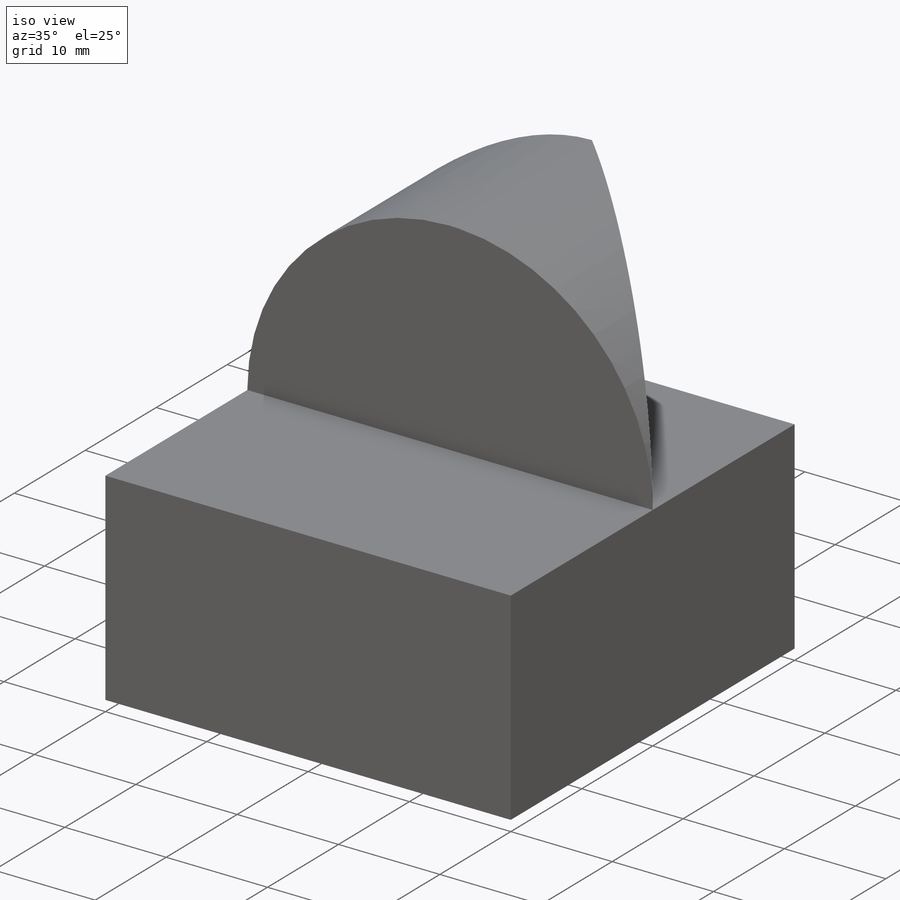
[diagram: iso view]
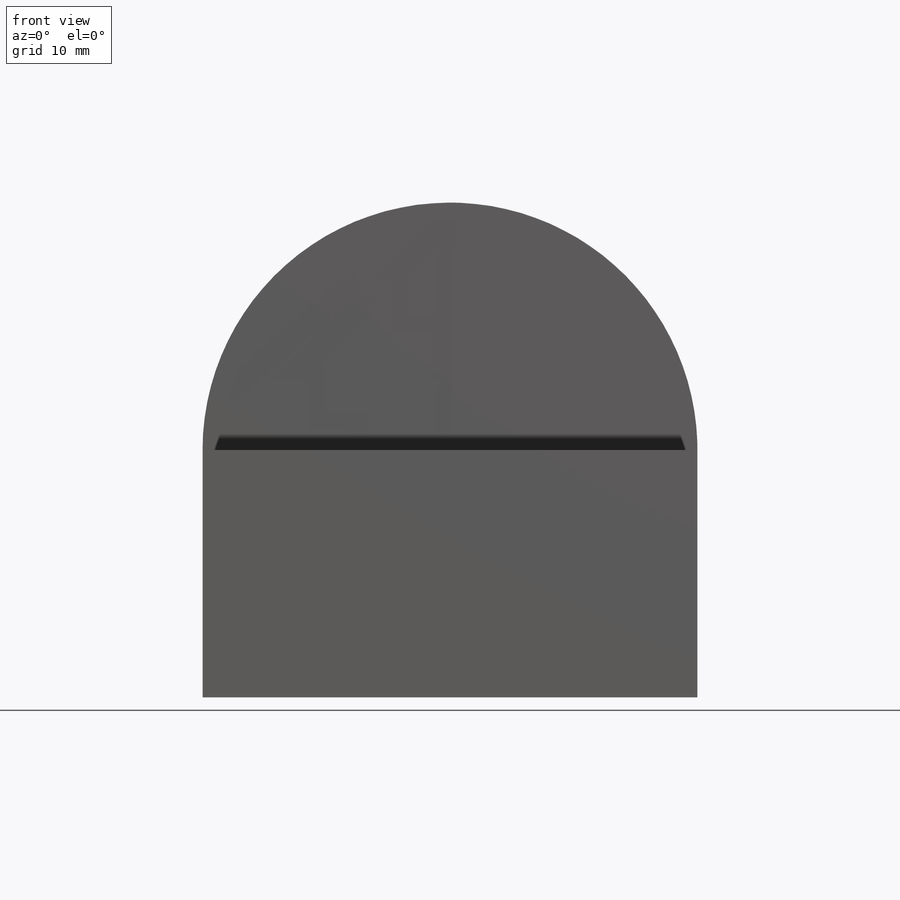
[diagram: front view]
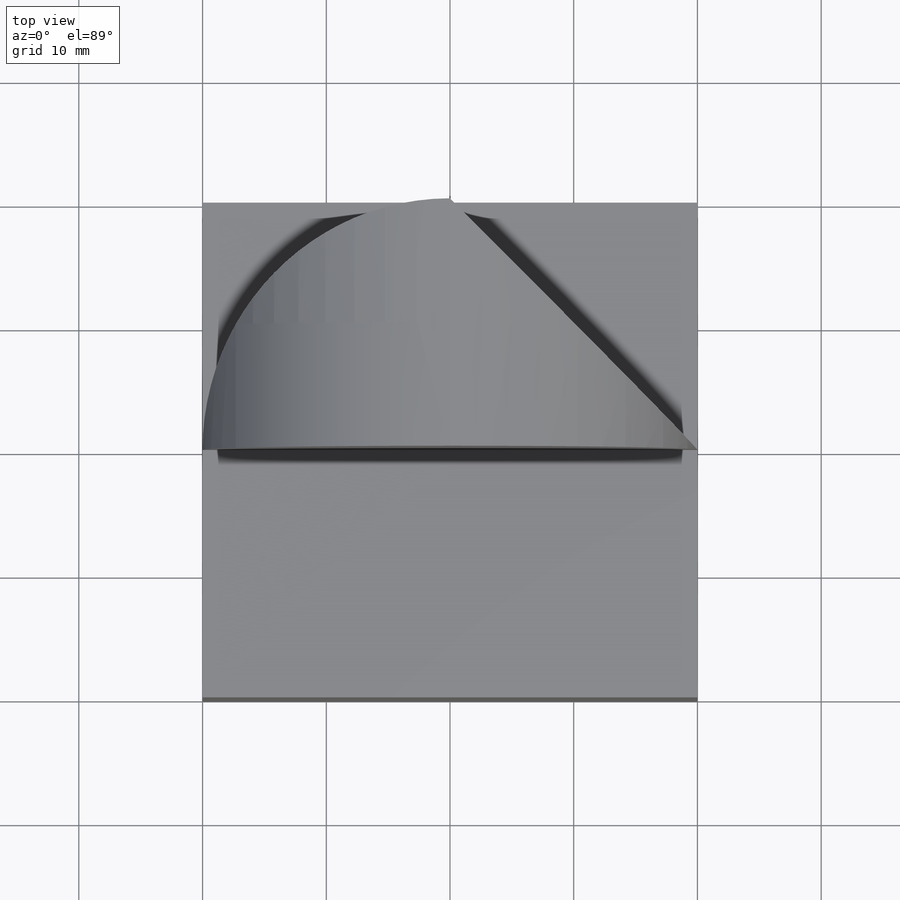
[diagram: top view]
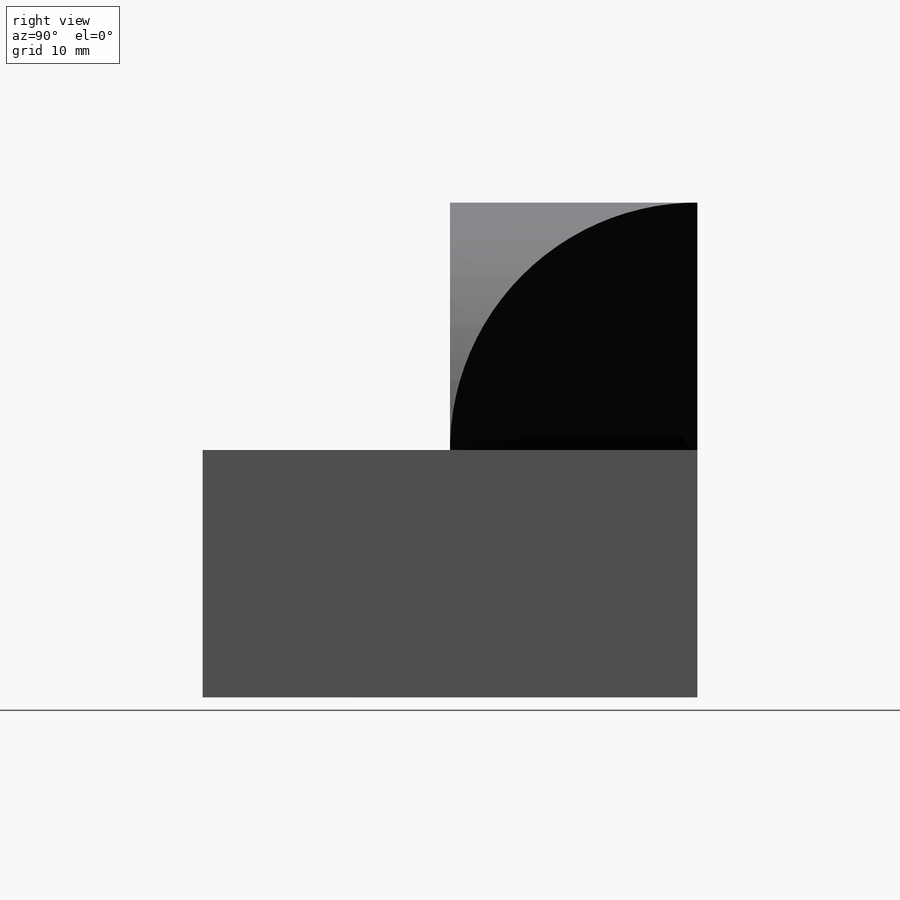
[diagram: right view]
SOLIDWORKS PART (.sldprt)
format: sldprt  version: not decoded by parser v0  size: 739,840 bytes
history: native  units: mm
features: sketch x42, cut_extrude x24, extrude x18, plane x9, material x1 (+13 scaffold rows collapsed)
feature tree (107):
  scaffold x13  (default folders/planes/origin — collapsed)
  material  "Material <not specified>"
  sketch  "Sketch1"  dims[c1.D1=~38.921099mm c1.D2=~68.968995mm c2.D1=40.0mm c2.D2=20.0mm]
  extrude  "Boss-Extrude1"  Depth=40mm
  sketch  "Sketch2"  dims[D1=20.0mm]
  extrude  "Boss-Extrude2"  Depth=10mm
  sketch  "Sketch3"  dims[D1=20.0mm]
  extrude  "Boss-Extrude3"  Depth=20mm
  plane  "Plane1"  Offset=20mm
  sketch  "Sketch4"  dims[D1=20.0mm]
  cut_extrude  "Cut-Extrude2"  Depth=20mm
  sketch  "Sketch5"  dims[D1=10.0mm]
  extrude  "Boss-Extrude4"  Depth=20mm
  plane  "Plane2"  Offset=10mm
  sketch  "Sketch7"  dims[D1=10.0mm]
  cut_extrude  "Cut-Extrude3"  Depth=20mm
  sketch  "Sketch8"  dims[D1=20.0mm D2=20.0mm D3=20.0mm]
  cut_extrude  "Cut-Extrude4"  Depth=1mm
  sketch  "Sketch13"  dims[D1=~28.284271mm]
  cut_extrude  "Cut-Extrude12"  Depth=63mm
  sketch  "Sketch17"  dims[D1=~28.284271mm]
  extrude  "Boss-Extrude11"  Depth=40mm
  sketch  "Sketch19"  dims[D1=~28.284271mm]
  extrude  "Boss-Extrude12"  Depth=1mm
  plane  "Plane3"  Offset=20mm
  sketch  "Sketch25"  dims[c1.D1=20.0mm c1.D2=~8.063542mm c2.D1=10.0mm]
  cut_extrude  "Cut-Extrude27"  Depth=42mm
  sketch  "Sketch28"  dims[c1.D1=~8.584748mm c1.D2=~9.219649mm c2.D1=9.99mm c2.D2=9.99mm]
  extrude  "Boss-Extrude20"  Depth=20mm
  sketch  "Sketch33"  dims[D1=~28.284271mm]
  extrude  "Boss-Extrude32"  Depth=20mm
  sketch  "Sketch34"  dims[D1=20.0mm D2=40.0mm]
  extrude  "Boss-Extrude33"  Depth=10mm
  sketch  "Sketch35"  dims[D1=20.01mm]
  extrude  "Boss-Extrude34"  Depth=10mm
  sketch  "Sketch36"  dims[D1=20.0mm D2=40.0mm]
  cut_extrude  "Cut-Extrude29"  Depth=9.999mm
  sketch  "Sketch37"  dims[D1=~28.284271mm]
  cut_extrude  "Cut-Extrude30"  Depth=9.999mm
  sketch  "Sketch38"  dims[D1=20.0mm]
  cut_extrude  "Cut-Extrude31"  [1 undecoded]
  plane  "Plane4"
  sketch  "Sketch40"  dims[D1=20.0mm]
  cut_extrude  "Cut-Extrude32"  Depth=9.999mm
  sketch  "Sketch46"  dims[D1=20.0mm]
  cut_extrude  "Cut-Extrude39"  Depth=20mm
  sketch  "Sketch47"  dims[D1=20.0mm]
  extrude  "Boss-Extrude35"  Depth=10mm
  sketch  "Sketch48"  dims[D1=10.0mm D2=20.0mm]
  extrude  "Boss-Extrude37"  Depth=0.001mm
  sketch  "Sketch49"  dims[D1=19.999mm]
  cut_extrude  "Cut-Extrude40"  Depth=20mm
  sketch  "Sketch51"  dims[D1=10.0mm]
  extrude  "Boss-Extrude38"  Depth=20mm
  sketch  "Sketch52"  dims[D1=20.0mm]
  cut_extrude  "Cut-Extrude41"  [1 undecoded]
  sketch  "Sketch53"  dims[D1=20.0mm]
  cut_extrude  "Cut-Extrude43"  Depth=10mm
  sketch  "Sketch54"  dims[c1.D1=~20.000427mm c1.D2=~28.367971mm c2.D1=~20.000427mm c2.D2=~20.000427mm c2.D3=~28.280676mm]
  cut_extrude  "Cut-Extrude46"  Depth=20mm
  sketch  "Sketch55"  dims[D1=10.0mm D2=10.0mm]
  extrude  "Boss-Extrude40"  Depth=20mm
  sketch  "Sketch56"  dims[D1=40.0mm D2=20.0mm]
  extrude  "Boss-Extrude41"  Depth=20mm
  plane  "Plane5"  Offset=20mm
  sketch  "Sketch57"  dims[D1=10.0mm D2=20.0mm]
  cut_extrude  "Cut-Extrude48"  Depth=20mm
  plane  "Plane6"  Offset=10mm
  sketch  "Sketch58"  dims[D1=~20.000018mm]
  extrude  "Boss-Extrude44"  Depth=9.999mm
  sketch  "Sketch59"  dims[D1=10.0mm]
  cut_extrude  "Cut-Extrude51"  Depth=47.999mm
  sketch  "Sketch60"  dims[D1=0.0mm]
  extrude  "Boss-Extrude45"  Depth=30mm
  sketch  "Sketch61"  dims[D1=~20.000018mm]
  cut_extrude  "Cut-Extrude52"  [1 undecoded]
  sketch  "Sketch63"  dims[D1=~20.000004mm]
  cut_extrude  "Cut-Extrude53"  Depth=0.0001mm
  sketch  "Sketch64"  dims[D1=~20.000018mm]
  cut_extrude  "Cut-Extrude54"  Depth=20mm
  sketch  "Sketch65"  dims[D1=19.999mm]
  cut_extrude  "Cut-Extrude59"  Depth=3000mm
  sketch  "Sketch66"  dims[D1=~9.999652mm]
  extrude  "Boss-Extrude52"  Depth=20mm
  sketch  "Sketch72"  dims[D1=20.0mm]
  cut_extrude  "Cut-Extrude64"  [1 undecoded]
  plane  "Plane7"  Offset=40mm
  sketch  "Sketch73"  dims[c1.D1=~8.658083mm c1.D2=~12.910757mm c2.D1=10.0mm c2.D2=20.0mm c2.D3=0.0mm]
  cut_extrude  "Cut-Extrude65"  Depth=0.0001mm
  plane  "Plane8"  Offset=10mm
  sketch  "Sketch74"  dims[D1=20.0mm]
  cut_extrude  "Cut-Extrude66"  Depth=0.0001mm
  plane  "Plane9"  Offset=40mm
  sketch  "Sketch76"  dims[c1.D1=~9.990331mm c1.D2=19.9594mm c2.D1=10.0mm c2.D2=20.0mm]
  cut_extrude  "Cut-Extrude67"  Depth=0.0001mm
decode coverage: 80 of 84 modeling features carry decoded parameters
note: ~ marks probable driven/reference dimensions
note: 4 parameter values undecoded
summary: no parameter record found for 4 features
note: suppression state not decoded; provenance and decode notes live in map.json
